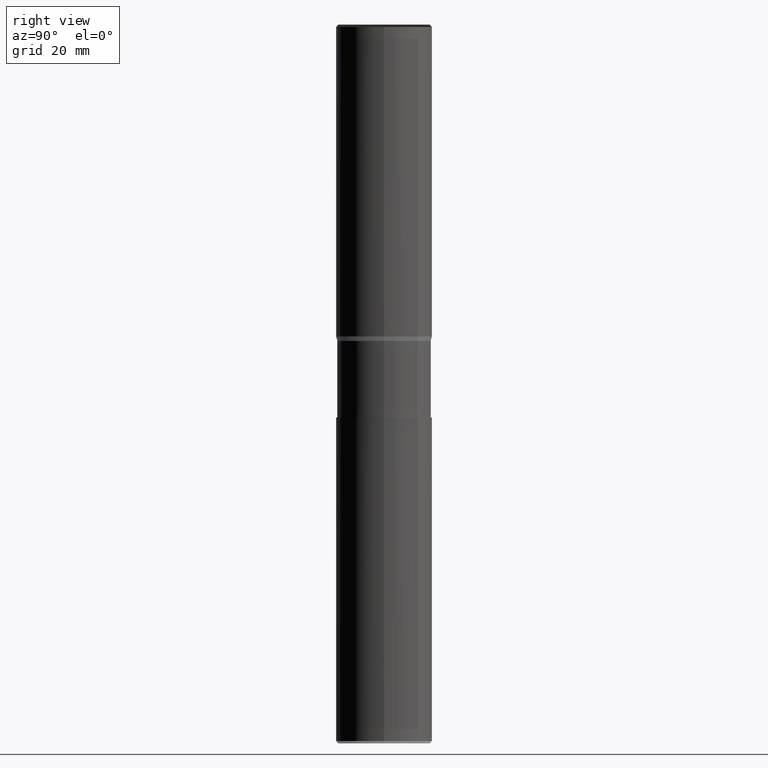
[diagram: clean part render]
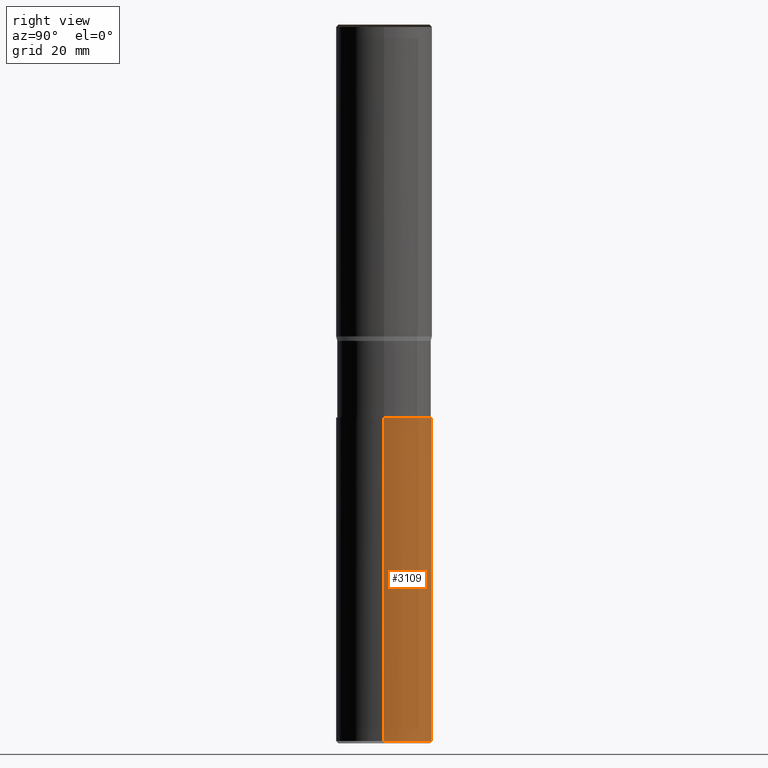
[diagram: same view with one face highlighted and labeled with its STEP entity id]
A machine part, right view. The second image highlights one B-rep face of the part: STEP entity #3109.
In plain terms, the highlighted face is a freeform B-spline surface patch.
Its self-contained STEP definition (entity closure, byte-faithful):
#2986=CARTESIAN_POINT('',(10.0,0.0,-84.43300989));
#2987=CARTESIAN_POINT('',(10.0,10.0,-84.43300989));
#2988=CARTESIAN_POINT('',(0.0,10.0,-84.43300989));
#2989=CARTESIAN_POINT('',(-10.0,10.0,-84.43300989));
#2990=CARTESIAN_POINT('',(-10.0,0.0,-84.43300989));
#2991=CARTESIAN_POINT('',(10.0,0.0,-16.93300989));
#2992=CARTESIAN_POINT('',(10.0,10.0,-16.93300989));
#2993=CARTESIAN_POINT('',(0.0,10.0,-16.93300989));
#2994=CARTESIAN_POINT('',(-10.0,10.0,-16.93300989));
#2995=CARTESIAN_POINT('',(-10.0,0.0,-16.93300989));
#3090=(
BOUNDED_SURFACE()
B_SPLINE_SURFACE(1,2,(
(#2986,#2987,#2988,#2989,#2990),
(#2991,#2992,#2993,#2994,#2995)
), .UNSPECIFIED.,.F.,.F.,.F.)
B_SPLINE_SURFACE_WITH_KNOTS((2,2),(3,2,3),(
0.0,1.0),(
0.0,0.5,1.0), .UNSPECIFIED.)
GEOMETRIC_REPRESENTATION_ITEM()
RATIONAL_B_SPLINE_SURFACE(((1.0,0.707106781187,1.0,0.707106781187,1.0),
(1.0,0.707106781187,1.0,0.707106781187,1.0)
))
REPRESENTATION_ITEM('')
SURFACE()
);
#3091=(
BOUNDED_CURVE()
B_SPLINE_CURVE(2,(#2991,#2992,#2993,#2994,#2995),.UNSPECIFIED.,.F.,.F.)
B_SPLINE_CURVE_WITH_KNOTS((3,2,3),
(0.0,0.5,1.0),.UNSPECIFIED.)
CURVE()
GEOMETRIC_REPRESENTATION_ITEM()
RATIONAL_B_SPLINE_CURVE((1.0,0.707106781187,1.0,0.707106781187,1.0))
REPRESENTATION_ITEM('')
);
#3092=(
BOUNDED_CURVE()
B_SPLINE_CURVE(1,(#2995,#2990),.UNSPECIFIED.,.F.,.F.)
B_SPLINE_CURVE_WITH_KNOTS((2,2),
(0.0,1.0),.UNSPECIFIED.)
CURVE()
GEOMETRIC_REPRESENTATION_ITEM()
RATIONAL_B_SPLINE_CURVE((1.0,1.0))
REPRESENTATION_ITEM('')
);
#3093=(
BOUNDED_CURVE()
B_SPLINE_CURVE(2,(#2990,#2989,#2988,#2987,#2986),.UNSPECIFIED.,.F.,.F.)
B_SPLINE_CURVE_WITH_KNOTS((3,2,3),
(0.0,0.5,1.0),.UNSPECIFIED.)
CURVE()
GEOMETRIC_REPRESENTATION_ITEM()
RATIONAL_B_SPLINE_CURVE((1.0,0.707106781187,1.0,0.707106781187,1.0))
REPRESENTATION_ITEM('')
);
#3094=(
BOUNDED_CURVE()
B_SPLINE_CURVE(1,(#2986,#2991),.UNSPECIFIED.,.F.,.F.)
B_SPLINE_CURVE_WITH_KNOTS((2,2),
(0.0,1.0),.UNSPECIFIED.)
CURVE()
GEOMETRIC_REPRESENTATION_ITEM()
RATIONAL_B_SPLINE_CURVE((1.0,1.0))
REPRESENTATION_ITEM('')
);
#3095=VERTEX_POINT('',#2986);
#3096=VERTEX_POINT('',#2990);
#3097=VERTEX_POINT('',#2991);
#3098=VERTEX_POINT('',#2995);
#3099=EDGE_CURVE('',#3097,#3098,#3091,.T.);
#3100=EDGE_CURVE('',#3098,#3096,#3092,.T.);
#3101=EDGE_CURVE('',#3096,#3095,#3093,.T.);
#3102=EDGE_CURVE('',#3095,#3097,#3094,.T.);
#3103=ORIENTED_EDGE('',*,*,#3099,.T.);
#3104=ORIENTED_EDGE('',*,*,#3100,.T.);
#3105=ORIENTED_EDGE('',*,*,#3101,.T.);
#3106=ORIENTED_EDGE('',*,*,#3102,.T.);
#3107=EDGE_LOOP('',(#3103,#3104,#3105,#3106));
#3108=FACE_OUTER_BOUND('',#3107,.T.);
#3109=ADVANCED_FACE('',(#3108),#3090,.T.);